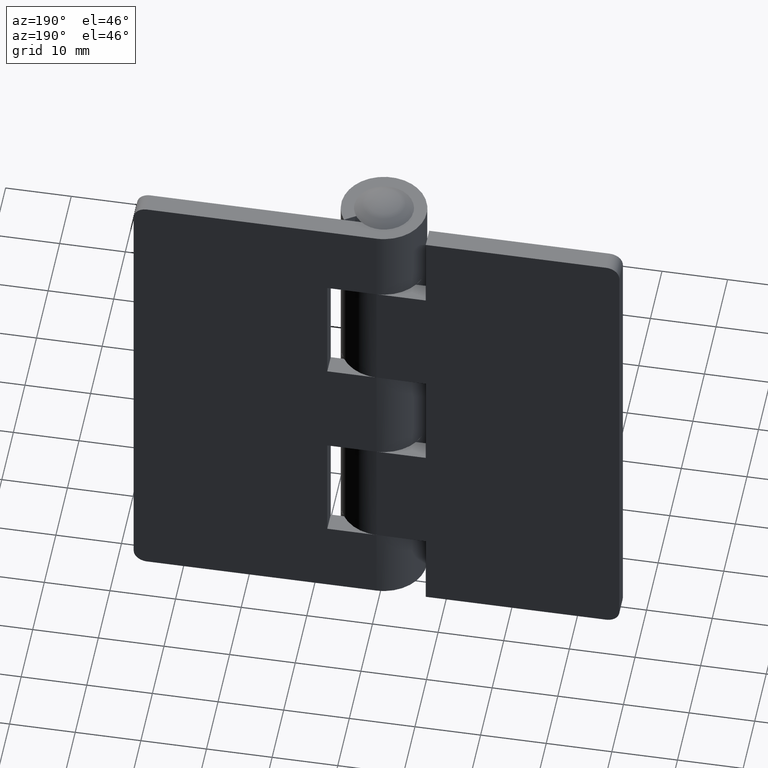
[diagram: clean part render]
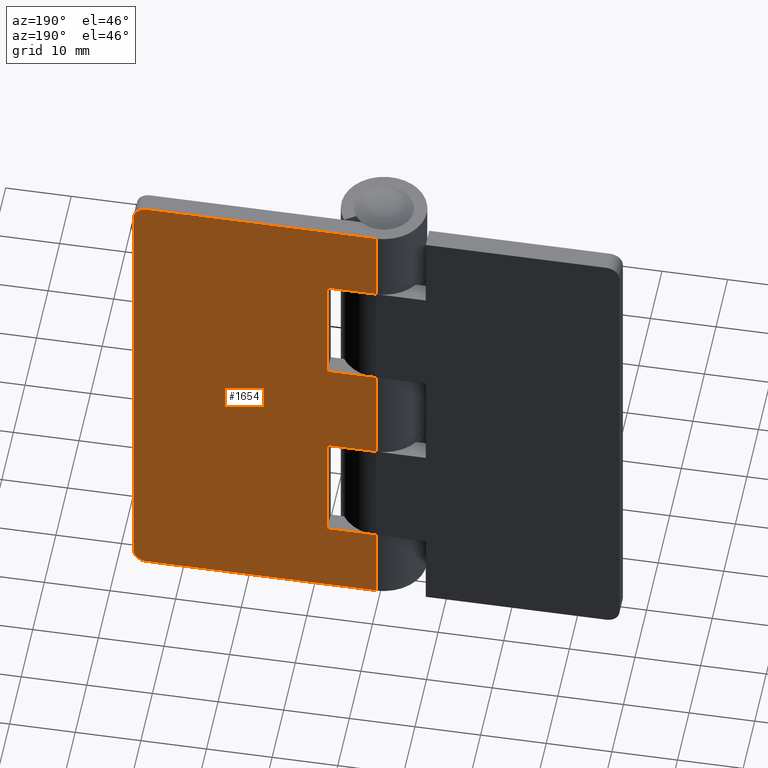
[diagram: same view with one face highlighted and labeled with its STEP entity id]
A machine part, auxiliary view. The second image highlights one B-rep face of the part: STEP entity #1654.
In plain terms, the highlighted face is a freeform B-spline surface patch.
Its self-contained STEP definition (entity closure, byte-faithful):
#885=CARTESIAN_POINT('',(34.999985000000102,6.500000000000000,76.0));
#886=VERTEX_POINT('',#885);
#887=CARTESIAN_POINT('',(36.999985000000102,6.500000000000000,74.0));
#888=VERTEX_POINT('',#887);
#889=CARTESIAN_POINT('',(34.999985000000102,6.500000000000000,76.0));
#890=CARTESIAN_POINT('',(36.999985000000095,6.500000000000001,76.0));
#891=CARTESIAN_POINT('',(36.999985000000102,6.500000000000000,74.0));
#899=(BOUNDED_CURVE()B_SPLINE_CURVE(2,(#889,#890,#891),.UNSPECIFIED.,.F.,.U.)CURVE()GEOMETRIC_REPRESENTATION_ITEM()QUASI_UNIFORM_CURVE()RATIONAL_B_SPLINE_CURVE((1.0,0.707106781186548,1.0))REPRESENTATION_ITEM(''));
#900=EDGE_CURVE('',#886,#888,#899,.T.);
#946=CARTESIAN_POINT('',(36.999985000000102,6.500000000000000,2.0));
#947=VERTEX_POINT('',#946);
#948=CARTESIAN_POINT('',(34.999985000000102,6.500000000000000,0.0));
#949=VERTEX_POINT('',#948);
#950=CARTESIAN_POINT('',(36.999985000000102,6.500000000000000,2.0));
#951=CARTESIAN_POINT('',(36.999985000000095,6.500000000000001,0.0));
#952=CARTESIAN_POINT('',(34.999985000000102,6.500000000000000,0.0));
#960=(BOUNDED_CURVE()B_SPLINE_CURVE(2,(#950,#951,#952),.UNSPECIFIED.,.F.,.U.)CURVE()GEOMETRIC_REPRESENTATION_ITEM()QUASI_UNIFORM_CURVE()RATIONAL_B_SPLINE_CURVE((1.0,0.707106781186548,1.0))REPRESENTATION_ITEM(''));
#961=EDGE_CURVE('',#947,#949,#960,.T.);
#1007=CARTESIAN_POINT('',(7.499985000000000,6.500000000000000,30.0));
#1008=VERTEX_POINT('',#1007);
#1014=CARTESIAN_POINT('',(7.499985000000000,6.500000000000000,12.0));
#1015=VERTEX_POINT('',#1014);
#1016=CARTESIAN_POINT('',(7.499985000000000,6.500000000000000,12.0));
#1017=CARTESIAN_POINT('',(7.499985000000000,6.500000000000000,30.0));
#1018=QUASI_UNIFORM_CURVE('',1,(#1016,#1017),.UNSPECIFIED.,.F.,.U.);
#1019=EDGE_CURVE('',#1015,#1008,#1018,.T.);
#1042=CARTESIAN_POINT('',(-1.193991E-015,6.500000000000000,12.0));
#1043=VERTEX_POINT('',#1042);
#1044=CARTESIAN_POINT('',(-1.193991E-015,6.500000000000000,12.0));
#1045=CARTESIAN_POINT('',(7.499985000000000,6.500000000000000,12.0));
#1046=QUASI_UNIFORM_CURVE('',1,(#1044,#1045),.UNSPECIFIED.,.F.,.U.);
#1047=EDGE_CURVE('',#1043,#1015,#1046,.T.);
#1139=CARTESIAN_POINT('',(0.0,6.500000000000000,30.0));
#1140=VERTEX_POINT('',#1139);
#1160=CARTESIAN_POINT('',(7.499985000000000,6.500000000000000,30.0));
#1161=CARTESIAN_POINT('',(0.0,6.500000000000000,30.0));
#1162=QUASI_UNIFORM_CURVE('',1,(#1160,#1161),.UNSPECIFIED.,.F.,.U.);
#1163=EDGE_CURVE('',#1008,#1140,#1162,.T.);
#1183=CARTESIAN_POINT('',(7.499985000000000,6.500000000000000,64.0));
#1184=VERTEX_POINT('',#1183);
#1190=CARTESIAN_POINT('',(7.499985000000000,6.500000000000000,46.0));
#1191=VERTEX_POINT('',#1190);
#1192=CARTESIAN_POINT('',(7.499985000000000,6.500000000000000,64.0));
#1193=CARTESIAN_POINT('',(7.499985000000000,6.500000000000000,46.0));
#1194=QUASI_UNIFORM_CURVE('',1,(#1192,#1193),.UNSPECIFIED.,.F.,.U.);
#1195=EDGE_CURVE('',#1184,#1191,#1194,.T.);
#1245=CARTESIAN_POINT('',(0.0,6.500000000000000,64.0));
#1246=VERTEX_POINT('',#1245);
#1266=CARTESIAN_POINT('',(0.0,6.500000000000000,64.0));
#1267=CARTESIAN_POINT('',(7.499985000000000,6.500000000000000,64.0));
#1268=QUASI_UNIFORM_CURVE('',1,(#1266,#1267),.UNSPECIFIED.,.F.,.U.);
#1269=EDGE_CURVE('',#1246,#1184,#1268,.T.);
#1288=CARTESIAN_POINT('',(0.0,6.500000000000000,46.0));
#1289=VERTEX_POINT('',#1288);
#1290=CARTESIAN_POINT('',(7.499985000000000,6.500000000000000,46.0));
#1291=CARTESIAN_POINT('',(0.0,6.500000000000000,46.0));
#1292=QUASI_UNIFORM_CURVE('',1,(#1290,#1291),.UNSPECIFIED.,.F.,.U.);
#1293=EDGE_CURVE('',#1191,#1289,#1292,.T.);
#1350=CARTESIAN_POINT('',(-1.193991E-015,6.500000000000000,0.0));
#1351=VERTEX_POINT('',#1350);
#1352=CARTESIAN_POINT('',(-1.193991E-015,6.500000000000000,0.0));
#1353=CARTESIAN_POINT('',(34.999985000000102,6.500000000000000,0.0));
#1354=QUASI_UNIFORM_CURVE('',1,(#1352,#1353),.UNSPECIFIED.,.F.,.U.);
#1355=EDGE_CURVE('',#1351,#949,#1354,.T.);
#1428=CARTESIAN_POINT('',(-1.193991E-015,6.500000000000000,76.0));
#1429=VERTEX_POINT('',#1428);
#1430=CARTESIAN_POINT('',(-1.193991E-015,6.500000000000000,76.0));
#1431=CARTESIAN_POINT('',(34.999985000000102,6.500000000000000,76.0));
#1432=QUASI_UNIFORM_CURVE('',1,(#1430,#1431),.UNSPECIFIED.,.F.,.U.);
#1433=EDGE_CURVE('',#1429,#886,#1432,.T.);
#1507=CARTESIAN_POINT('',(0.0,6.500000000000000,46.0));
#1508=CARTESIAN_POINT('',(0.0,6.500000000000000,30.0));
#1509=QUASI_UNIFORM_CURVE('',1,(#1507,#1508),.UNSPECIFIED.,.F.,.U.);
#1510=EDGE_CURVE('',#1289,#1140,#1509,.T.);
#1616=CARTESIAN_POINT('',(36.999985000000102,6.500000000000000,74.0));
#1617=CARTESIAN_POINT('',(36.999985000000102,6.500000000000000,2.0));
#1618=QUASI_UNIFORM_CURVE('',1,(#1616,#1617),.UNSPECIFIED.,.F.,.U.);
#1619=EDGE_CURVE('',#888,#947,#1618,.T.);
#1625=CARTESIAN_POINT('',(-1.848149179036853,6.500000000000000,-3.796199852697257));
#1626=CARTESIAN_POINT('',(-1.848149179036853,6.500000000000000,79.796201891176096));
#1627=CARTESIAN_POINT('',(38.848135171453883,6.500000000000000,-3.796199852697257));
#1628=CARTESIAN_POINT('',(38.848135171453883,6.500000000000000,79.796201891176096));
#1629=B_SPLINE_SURFACE_WITH_KNOTS('',1,1,((#1625,#1627),(#1626,#1628)),.UNSPECIFIED.,.F.,.F.,.U.,(2,2),(2,2),(0.0,83.592401743873353),(0.0,40.696284350490728),.UNSPECIFIED.);
#1630=ORIENTED_EDGE('',*,*,#1619,.T.);
#1631=ORIENTED_EDGE('',*,*,#961,.T.);
#1632=ORIENTED_EDGE('',*,*,#1355,.F.);
#1633=CARTESIAN_POINT('',(-1.193991E-015,6.500000000000000,12.0));
#1634=CARTESIAN_POINT('',(-1.193991E-015,6.500000000000000,0.0));
#1635=QUASI_UNIFORM_CURVE('',1,(#1633,#1634),.UNSPECIFIED.,.F.,.U.);
#1636=EDGE_CURVE('',#1043,#1351,#1635,.T.);
#1637=ORIENTED_EDGE('',*,*,#1636,.F.);
#1638=ORIENTED_EDGE('',*,*,#1047,.T.);
#1639=ORIENTED_EDGE('',*,*,#1019,.T.);
#1640=ORIENTED_EDGE('',*,*,#1163,.T.);
#1641=ORIENTED_EDGE('',*,*,#1510,.F.);
#1642=ORIENTED_EDGE('',*,*,#1293,.F.);
#1643=ORIENTED_EDGE('',*,*,#1195,.F.);
#1644=ORIENTED_EDGE('',*,*,#1269,.F.);
#1645=CARTESIAN_POINT('',(-1.193991E-015,6.500000000000000,76.0));
#1646=CARTESIAN_POINT('',(0.0,6.500000000000000,64.0));
#1647=QUASI_UNIFORM_CURVE('',1,(#1645,#1646),.UNSPECIFIED.,.F.,.U.);
#1648=EDGE_CURVE('',#1429,#1246,#1647,.T.);
#1649=ORIENTED_EDGE('',*,*,#1648,.F.);
#1650=ORIENTED_EDGE('',*,*,#1433,.T.);
#1651=ORIENTED_EDGE('',*,*,#900,.T.);
#1652=EDGE_LOOP('',(#1630,#1631,#1632,#1637,#1638,#1639,#1640,#1641,#1642,#1643,#1644,#1649,#1650,#1651));
#1653=FACE_OUTER_BOUND('',#1652,.T.);
#1654=ADVANCED_FACE('',(#1653),#1629,.T.);